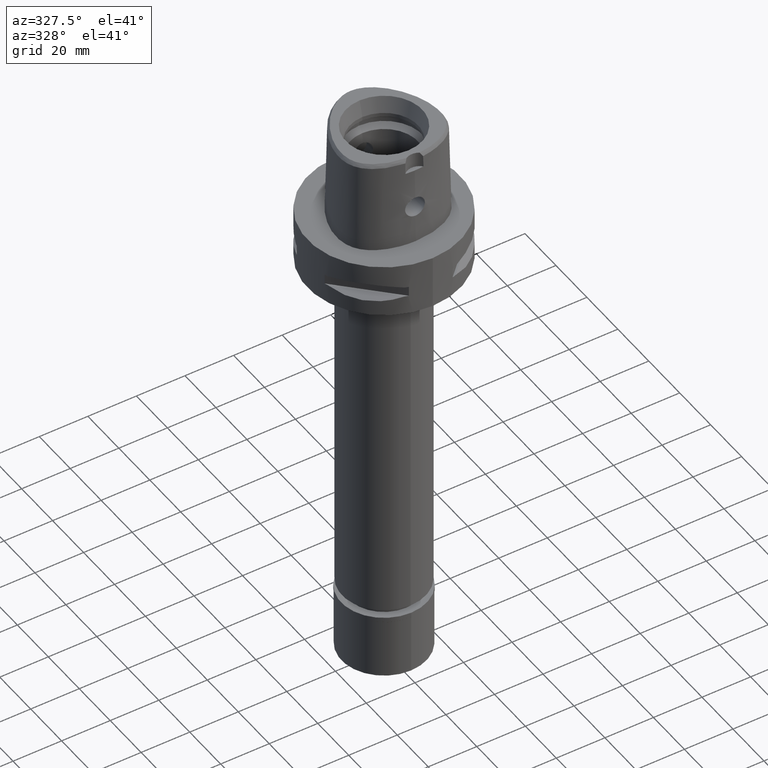
[diagram: clean part render]
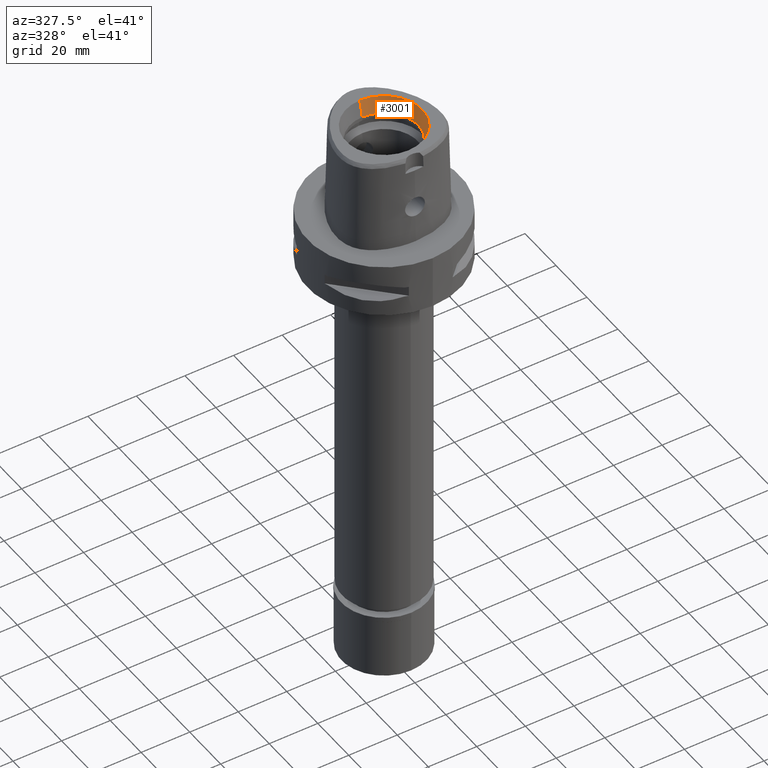
[diagram: same view with one face highlighted and labeled with its STEP entity id]
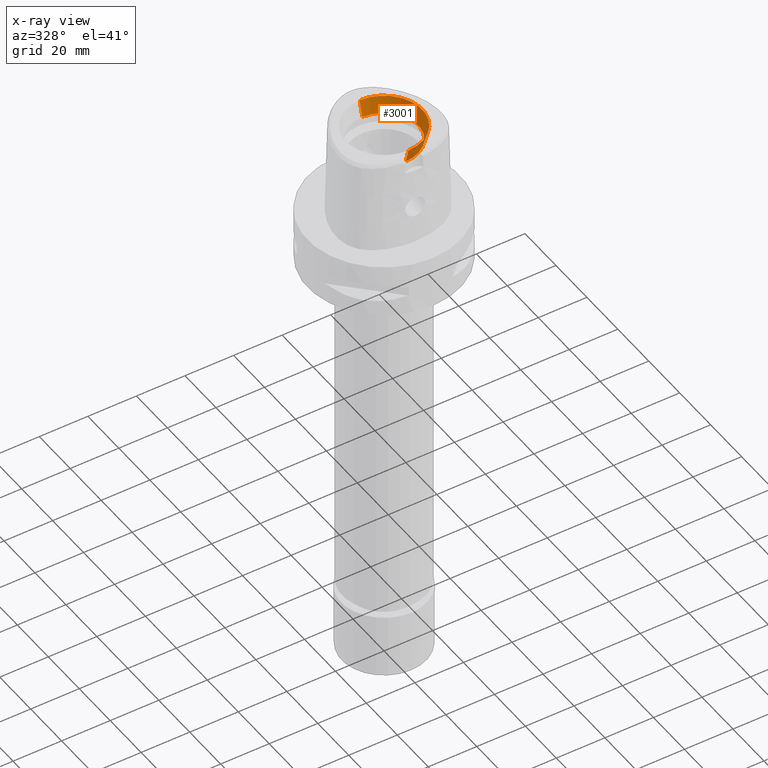
[diagram: x-ray of the same camera — body ghosted, the highlighted face saturated]
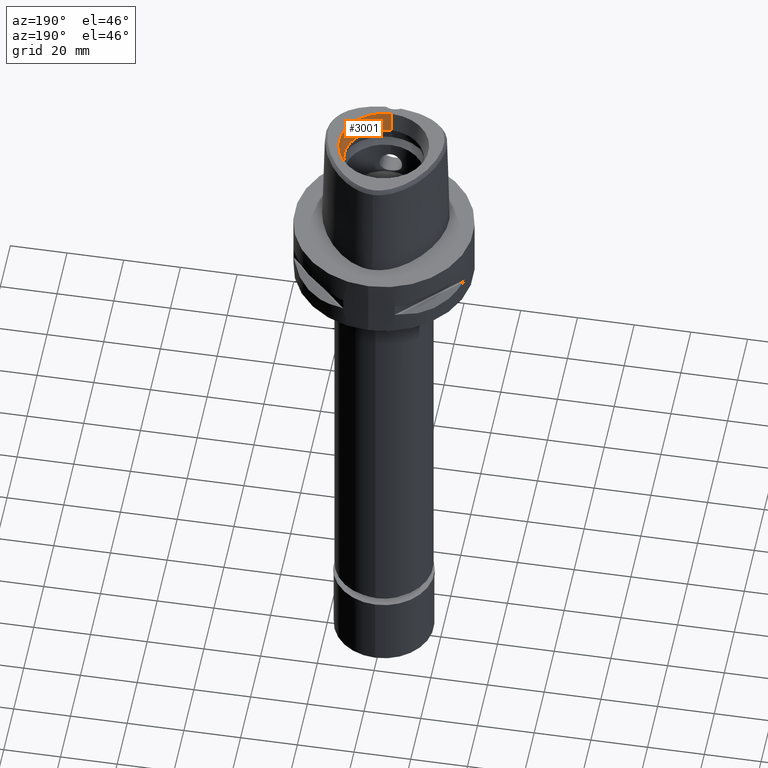
[diagram: same view with one face highlighted and labeled with its STEP entity id]
A machine part, auxiliary view. The second image highlights one B-rep face of the part: STEP entity #3001.
The next image is the same camera in x-ray: the body ghosted, the highlighted face saturated — about 0% of this face is hidden behind the body in this view.
A second angle (auxiliary view) of the same face is appended — the face is thin or edge-on in the first view.
In plain terms, the highlighted conical surface has half-angle 15 deg.
Its self-contained STEP definition (entity closure, byte-faithful):
#40 = ORIENTED_EDGE ( 'NONE', *, *, #1204, .F. ) ;
#274 = CIRCLE ( 'NONE', #1144, 15.71487483155999776 ) ;
#279 = AXIS2_PLACEMENT_3D ( 'NONE', #3617, #3130, #3522 ) ;
#333 = VERTEX_POINT ( 'NONE', #904 ) ;
#353 = EDGE_LOOP ( 'NONE', ( #40, #2032, #3259, #2737 ) ) ;
#446 = CARTESIAN_POINT ( 'NONE',  ( 0.0000000000000000000, -15.71487483155999776, 38.00000000000000000 ) ) ;
#575 = VECTOR ( 'NONE', #2174, 1000.000000000000000 ) ;
#587 = FACE_OUTER_BOUND ( 'NONE', #353, .T. ) ;
#904 = CARTESIAN_POINT ( 'NONE',  ( 0.0000000000000000000, 15.71487483155999776, 38.00000000000000000 ) ) ;
#964 = EDGE_CURVE ( 'NONE', #2913, #1850, #2554, .T. ) ;
#1144 = AXIS2_PLACEMENT_3D ( 'NONE', #4320, #2832, #3572 ) ;
#1204 = EDGE_CURVE ( 'NONE', #1850, #333, #2900, .T. ) ;
#1417 = CARTESIAN_POINT ( 'NONE',  ( 0.0000000000000000000, 0.0000000000000000000, 31.60000000000000142 ) ) ;
#1663 = VERTEX_POINT ( 'NONE', #446 ) ;
#1696 = CARTESIAN_POINT ( 'NONE',  ( 0.0000000000000000000, 14.00000000000000000, 31.60000000000000142 ) ) ;
#1850 = VERTEX_POINT ( 'NONE', #1696 ) ;
#1908 = EDGE_CURVE ( 'NONE', #2913, #1663, #2456, .T. ) ;
#2032 = ORIENTED_EDGE ( 'NONE', *, *, #964, .F. ) ;
#2174 = DIRECTION ( 'NONE',  ( 0.0000000000000000000, 0.2588190451025869088, 0.9659258262890505486 ) ) ;
#2228 = EDGE_CURVE ( 'NONE', #1663, #333, #274, .T. ) ;
#2456 = LINE ( 'NONE', #2872, #4227 ) ;
#2554 = CIRCLE ( 'NONE', #4621, 14.00000000000000000 ) ;
#2575 = DIRECTION ( 'NONE',  ( 0.0000000000000000000, -1.000000000000000000, 0.0000000000000000000 ) ) ;
#2737 = ORIENTED_EDGE ( 'NONE', *, *, #2228, .T. ) ;
#2804 = CARTESIAN_POINT ( 'NONE',  ( 0.0000000000000000000, -14.00000000000000000, 31.60000000000000142 ) ) ;
#2832 = DIRECTION ( 'NONE',  ( 0.0000000000000000000, 0.0000000000000000000, 1.000000000000000000 ) ) ;
#2872 = CARTESIAN_POINT ( 'NONE',  ( 0.0000000000000000000, -14.00000000000000000, 31.60000000000000142 ) ) ;
#2900 = LINE ( 'NONE', #4061, #575 ) ;
#2913 = VERTEX_POINT ( 'NONE', #2804 ) ;
#3001 = ADVANCED_FACE ( 'NONE', ( #587 ), #4235, .F. ) ;
#3130 = DIRECTION ( 'NONE',  ( 0.0000000000000000000, 0.0000000000000000000, 1.000000000000000000 ) ) ;
#3259 = ORIENTED_EDGE ( 'NONE', *, *, #1908, .T. ) ;
#3522 = DIRECTION ( 'NONE',  ( 0.0000000000000000000, 1.000000000000000000, 0.0000000000000000000 ) ) ;
#3572 = DIRECTION ( 'NONE',  ( 0.0000000000000000000, -1.000000000000000000, 0.0000000000000000000 ) ) ;
#3616 = DIRECTION ( 'NONE',  ( 0.0000000000000000000, -0.2588190451025869088, 0.9659258262890505486 ) ) ;
#3617 = CARTESIAN_POINT ( 'NONE',  ( 0.0000000000000000000, 0.0000000000000000000, 34.79999999999999716 ) ) ;
#4061 = CARTESIAN_POINT ( 'NONE',  ( 0.0000000000000000000, 14.00000000000000000, 31.60000000000000142 ) ) ;
#4227 = VECTOR ( 'NONE', #3616, 1000.000000000000000 ) ;
#4235 = CONICAL_SURFACE ( 'NONE', #279, 14.85743741577999977, 0.2617993877991000029 ) ;
#4320 = CARTESIAN_POINT ( 'NONE',  ( 0.0000000000000000000, 0.0000000000000000000, 38.00000000000000000 ) ) ;
#4460 = DIRECTION ( 'NONE',  ( 0.0000000000000000000, 0.0000000000000000000, 1.000000000000000000 ) ) ;
#4621 = AXIS2_PLACEMENT_3D ( 'NONE', #1417, #4460, #2575 ) ;